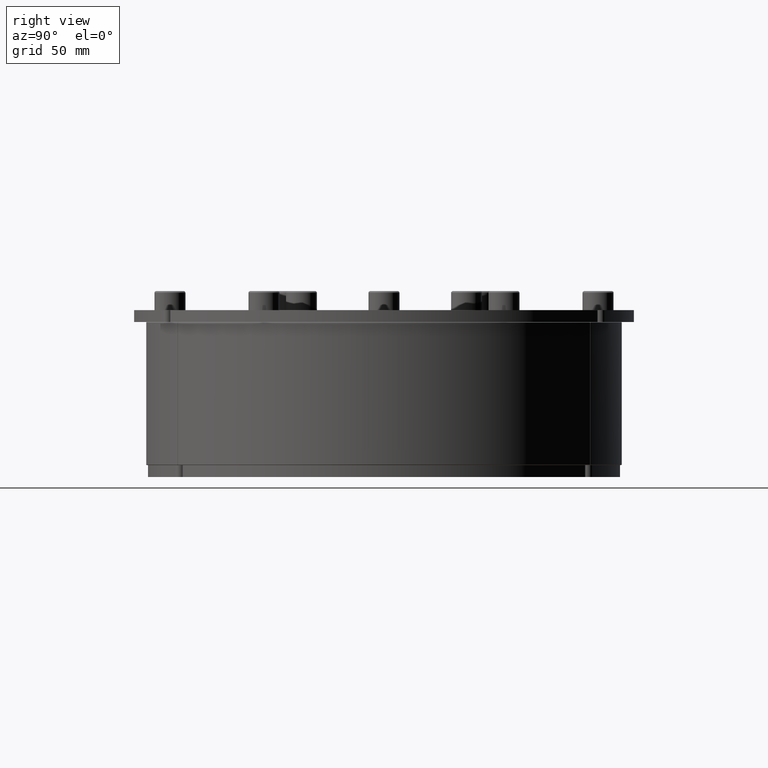
[diagram: clean part render]
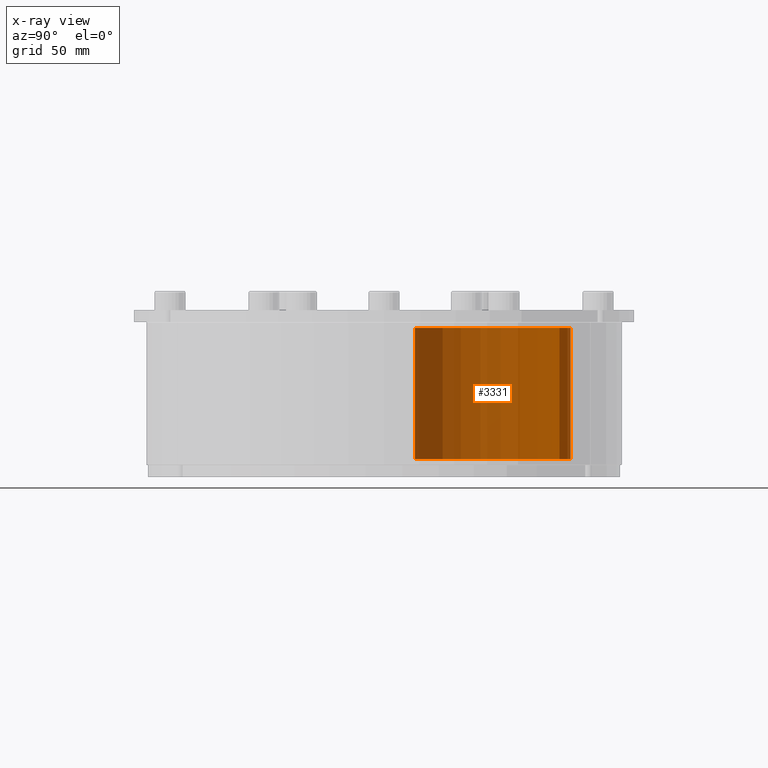
[diagram: x-ray — body ghosted, one internal face saturated and labeled with its STEP entity id]
A machine part, right view, then the same camera in x-ray: the body is ghosted and one INTERNAL B-rep face — a face not visible from any outside direction — is saturated and labeled: STEP entity #3331.
In plain terms, the highlighted cylindrical surface (partial cylindrical patch) has radius 35 mm, axis along (0, -0, 1).
Its self-contained STEP definition (entity closure, byte-faithful):
#3209=CARTESIAN_POINT('',(-35.000000000000007,0.0,55.0));
#3210=VERTEX_POINT('',#3209);
#3227=CARTESIAN_POINT('',(-35.000000000000007,0.0,0.0));
#3228=VERTEX_POINT('',#3227);
#3235=CARTESIAN_POINT('',(-35.000000000000007,0.0,0.0));
#3236=DIRECTION('',(0.0,0.0,1.0));
#3237=VECTOR('',#3236,55.0);
#3238=LINE('',#3235,#3237);
#3239=EDGE_CURVE('',#3228,#3210,#3238,.T.);
#3282=CARTESIAN_POINT('',(35.000000000000007,0.0,55.0));
#3283=VERTEX_POINT('',#3282);
#3290=CARTESIAN_POINT('',(35.000000000000007,0.0,0.0));
#3291=VERTEX_POINT('',#3290);
#3292=CARTESIAN_POINT('',(35.000000000000007,0.0,0.0));
#3293=DIRECTION('',(0.0,0.0,1.0));
#3294=VECTOR('',#3293,55.0);
#3295=LINE('',#3292,#3294);
#3296=EDGE_CURVE('',#3291,#3283,#3295,.T.);
#3308=CARTESIAN_POINT('',(0.0,0.0,0.0));
#3309=DIRECTION('',(0.0,0.0,1.0));
#3310=DIRECTION('',(-1.0,0.0,0.0));
#3311=AXIS2_PLACEMENT_3D('',#3308,#3309,#3310);
#3312=CYLINDRICAL_SURFACE('',#3311,35.000000000000007);
#3313=CARTESIAN_POINT('',(0.0,0.0,55.0));
#3314=DIRECTION('',(0.0,0.0,-1.0));
#3315=DIRECTION('',(-1.0,0.0,0.0));
#3316=AXIS2_PLACEMENT_3D('',#3313,#3314,#3315);
#3317=CIRCLE('',#3316,35.000000000000007);
#3318=EDGE_CURVE('',#3283,#3210,#3317,.T.);
#3319=ORIENTED_EDGE('',*,*,#3318,.T.);
#3320=ORIENTED_EDGE('',*,*,#3239,.F.);
#3321=CARTESIAN_POINT('',(0.0,0.0,0.0));
#3322=DIRECTION('',(0.0,0.0,1.0));
#3323=DIRECTION('',(-1.0,0.0,0.0));
#3324=AXIS2_PLACEMENT_3D('',#3321,#3322,#3323);
#3325=CIRCLE('',#3324,35.000000000000007);
#3326=EDGE_CURVE('',#3228,#3291,#3325,.T.);
#3327=ORIENTED_EDGE('',*,*,#3326,.T.);
#3328=ORIENTED_EDGE('',*,*,#3296,.T.);
#3329=EDGE_LOOP('',(#3319,#3320,#3327,#3328));
#3330=FACE_OUTER_BOUND('',#3329,.T.);
#3331=ADVANCED_FACE('',(#3330),#3312,.T.);